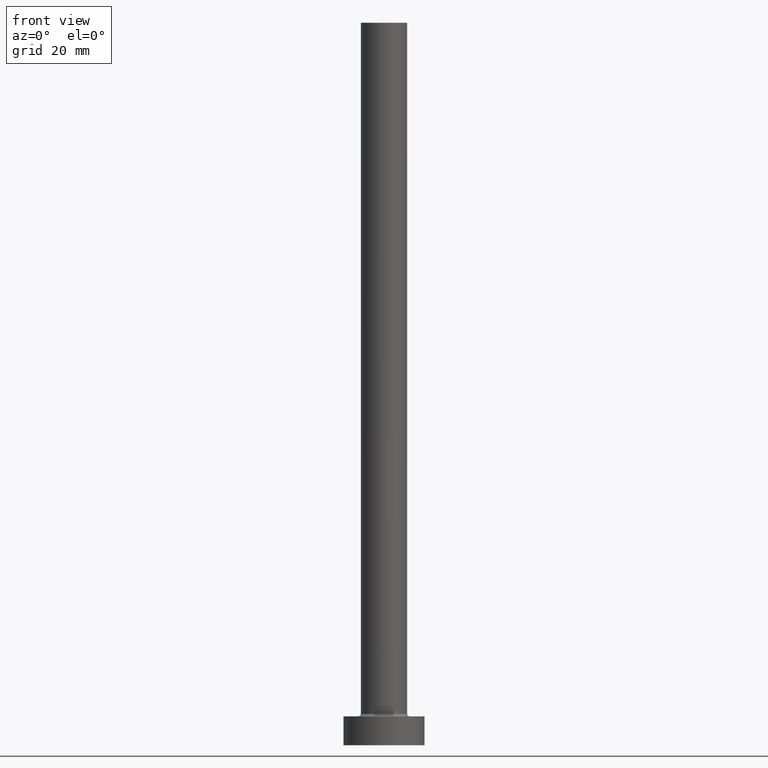
[diagram: clean part render]
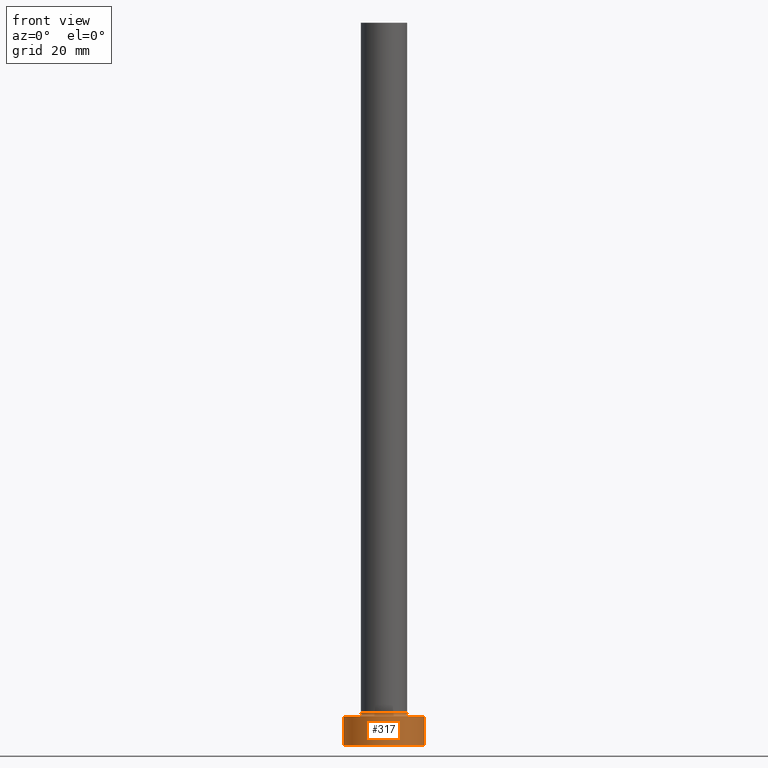
[diagram: same view with one face highlighted and labeled with its STEP entity id]
A machine part, front view. The second image highlights one B-rep face of the part: STEP entity #317.
In plain terms, the highlighted cylindrical surface (partial cylindrical patch) has radius 7 mm, axis along (-0, -0, -1).
Its self-contained STEP definition (entity closure, byte-faithful):
#31 = EDGE_CURVE ( 'NONE', #332, #444, #306, .T. ) ;
#50 = ORIENTED_EDGE ( 'NONE', *, *, #172, .F. ) ;
#52 = CIRCLE ( 'NONE', #345, 7.000000000000000000 ) ;
#59 = CARTESIAN_POINT ( 'NONE',  ( -7.000000000000000000, 0.000000000000000000, 5.000000000000000000 ) ) ;
#69 = DIRECTION ( 'NONE',  ( 1.000000000000000000, 0.000000000000000000, 0.000000000000000000 ) ) ;
#74 = CARTESIAN_POINT ( 'NONE',  ( 7.000000000000000000, 8.572527594031473190E-16, 5.000000000000000000 ) ) ;
#77 = DIRECTION ( 'NONE',  ( -0.000000000000000000, -0.000000000000000000, -1.000000000000000000 ) ) ;
#110 = CARTESIAN_POINT ( 'NONE',  ( 0.000000000000000000, 0.000000000000000000, 5.000000000000000000 ) ) ;
#114 = FACE_OUTER_BOUND ( 'NONE', #185, .T. ) ;
#150 = ORIENTED_EDGE ( 'NONE', *, *, #206, .T. ) ;
#168 = VECTOR ( 'NONE', #77, 1000.000000000000000 ) ;
#172 = EDGE_CURVE ( 'NONE', #332, #290, #351, .T. ) ;
#183 = ORIENTED_EDGE ( 'NONE', *, *, #263, .F. ) ;
#184 = DIRECTION ( 'NONE',  ( -1.000000000000000000, 0.000000000000000000, 0.000000000000000000 ) ) ;
#185 = EDGE_LOOP ( 'NONE', ( #183, #50, #202, #150 ) ) ;
#197 = VECTOR ( 'NONE', #452, 1000.000000000000000 ) ;
#202 = ORIENTED_EDGE ( 'NONE', *, *, #31, .T. ) ;
#206 = EDGE_CURVE ( 'NONE', #444, #440, #52, .T. ) ;
#212 = CARTESIAN_POINT ( 'NONE',  ( -7.000000000000000000, 0.000000000000000000, 5.000000000000000000 ) ) ;
#229 = AXIS2_PLACEMENT_3D ( 'NONE', #110, #239, #184 ) ;
#236 = AXIS2_PLACEMENT_3D ( 'NONE', #309, #237, #69 ) ;
#237 = DIRECTION ( 'NONE',  ( 0.000000000000000000, 0.000000000000000000, 1.000000000000000000 ) ) ;
#239 = DIRECTION ( 'NONE',  ( -0.000000000000000000, -0.000000000000000000, -1.000000000000000000 ) ) ;
#241 = CARTESIAN_POINT ( 'NONE',  ( 0.000000000000000000, 0.000000000000000000, 0.000000000000000000 ) ) ;
#263 = EDGE_CURVE ( 'NONE', #290, #440, #314, .T. ) ;
#272 = DIRECTION ( 'NONE',  ( 1.000000000000000000, 0.000000000000000000, 0.000000000000000000 ) ) ;
#290 = VERTEX_POINT ( 'NONE', #74 ) ;
#306 = LINE ( 'NONE', #59, #197 ) ;
#309 = CARTESIAN_POINT ( 'NONE',  ( 0.000000000000000000, 0.000000000000000000, 5.000000000000000000 ) ) ;
#314 = LINE ( 'NONE', #459, #168 ) ;
#317 = ADVANCED_FACE ( 'NONE', ( #114 ), #382, .T. ) ;
#332 = VERTEX_POINT ( 'NONE', #212 ) ;
#345 = AXIS2_PLACEMENT_3D ( 'NONE', #241, #348, #272 ) ;
#348 = DIRECTION ( 'NONE',  ( 0.000000000000000000, 0.000000000000000000, 1.000000000000000000 ) ) ;
#351 = CIRCLE ( 'NONE', #236, 7.000000000000000000 ) ;
#382 = CYLINDRICAL_SURFACE ( 'NONE', #229, 7.000000000000000000 ) ;
#427 = CARTESIAN_POINT ( 'NONE',  ( 7.000000000000000000, 8.572527594031473190E-16, 0.000000000000000000 ) ) ;
#439 = CARTESIAN_POINT ( 'NONE',  ( -7.000000000000000000, 0.000000000000000000, 0.000000000000000000 ) ) ;
#440 = VERTEX_POINT ( 'NONE', #427 ) ;
#444 = VERTEX_POINT ( 'NONE', #439 ) ;
#452 = DIRECTION ( 'NONE',  ( -0.000000000000000000, -0.000000000000000000, -1.000000000000000000 ) ) ;
#459 = CARTESIAN_POINT ( 'NONE',  ( 7.000000000000000000, 8.572527594031473190E-16, 5.000000000000000000 ) ) ;